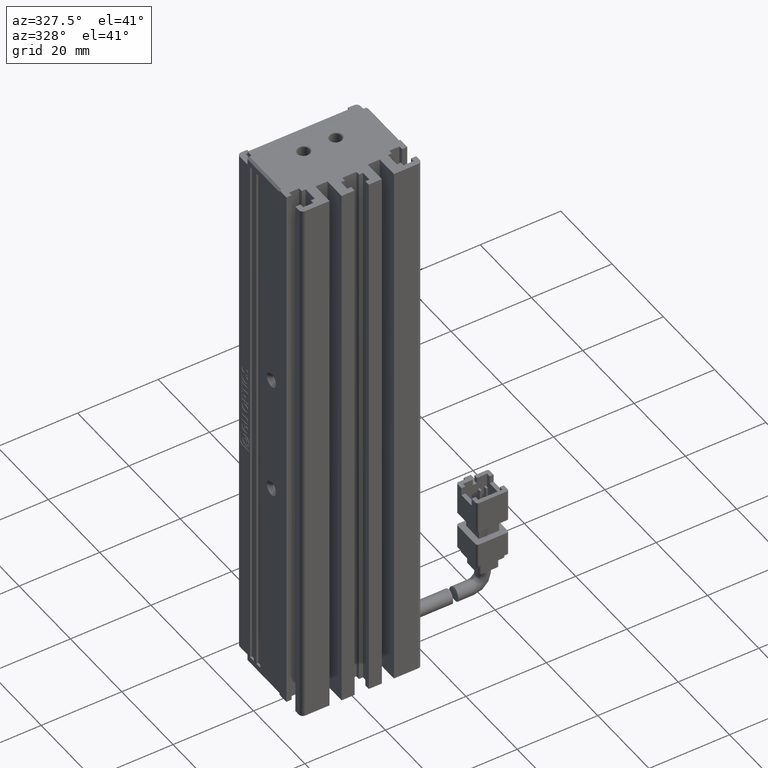
[diagram: clean part render]
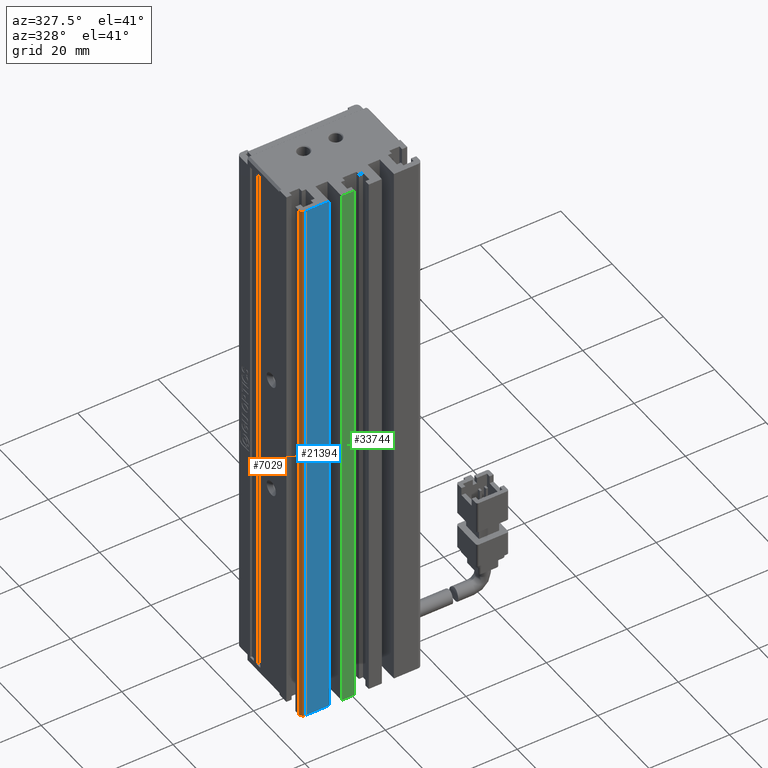
[diagram: same view with three faces highlighted in distinct colors, each labeled with its STEP entity id]
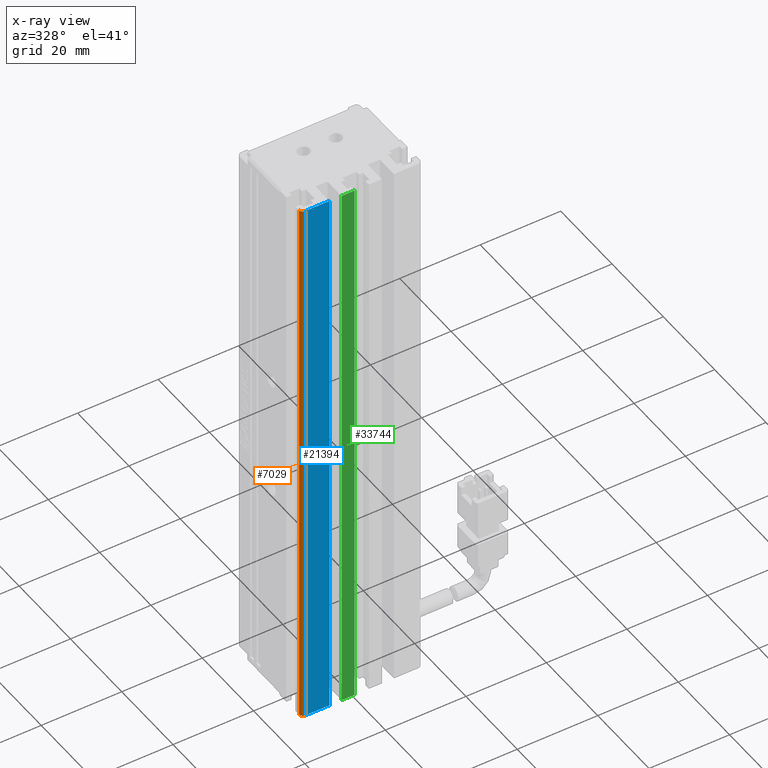
[diagram: x-ray of the same camera — body ghosted, the three highlighted faces saturated]
A machine part, auxiliary view with three faces highlighted in distinct colors.
The next image is the same camera in x-ray (body ghosted, the three faces saturated) — at least one of them is partly hidden behind the body in this view.
Their STEP definitions:

[orange] entity #7029 — the highlighted cylindrical surface (edge-blend (fillet) strip) has radius 1 mm, axis along (-0, -0, -1).
#10 = CARTESIAN_POINT ( 'NONE',  ( 26.92537974683542100, 10.69594479660386800, -45.00000000000000000 ) ) ;
#16 = EDGE_CURVE ( 'NONE', #2446, #2232, #22929, .T. ) ;
#410 = LINE ( 'NONE', #10, #8119 ) ;
#1608 = CARTESIAN_POINT ( 'NONE',  ( 25.92537974683542100, 11.69594479660387000, -45.00000000000000000 ) ) ;
#2232 = VERTEX_POINT ( 'NONE', #30188 ) ;
#2295 = DIRECTION ( 'NONE',  ( -1.000000000000000000, 0.0000000000000000000, 0.0000000000000000000 ) ) ;
#2411 = ORIENTED_EDGE ( 'NONE', *, *, #18554, .T. ) ;
#2446 = VERTEX_POINT ( 'NONE', #1608 ) ;
#3339 = CIRCLE ( 'NONE', #20445, 1.000000000000000900 ) ;
#3808 = ORIENTED_EDGE ( 'NONE', *, *, #36676, .T. ) ;
#7029 = ADVANCED_FACE ( 'NONE', ( #31079 ), #20768, .T. ) ;
#8106 = CIRCLE ( 'NONE', #25278, 1.000000000000000900 ) ;
#8119 = VECTOR ( 'NONE', #34425, 1000.000000000000000 ) ;
#10432 = DIRECTION ( 'NONE',  ( -1.000000000000000000, 0.0000000000000000000, 0.0000000000000000000 ) ) ;
#10530 = EDGE_CURVE ( 'NONE', #13809, #14666, #410, .T. ) ;
#10909 = CARTESIAN_POINT ( 'NONE',  ( 26.92537974683542100, 11.69594479660387000, -185.0000000000000000 ) ) ;
#13786 = DIRECTION ( 'NONE',  ( -1.000000000000000000, 0.0000000000000000000, 0.0000000000000000000 ) ) ;
#13809 = VERTEX_POINT ( 'NONE', #14790 ) ;
#14666 = VERTEX_POINT ( 'NONE', #24224 ) ;
#14790 = CARTESIAN_POINT ( 'NONE',  ( 26.92537974683542100, 10.69594479660386800, -45.00000000000000000 ) ) ;
#18554 = EDGE_CURVE ( 'NONE', #13809, #2446, #3339, .T. ) ;
#19461 = EDGE_LOOP ( 'NONE', ( #2411, #36730, #3808, #21695 ) ) ;
#19602 = DIRECTION ( 'NONE',  ( -0.0000000000000000000, -0.0000000000000000000, -1.000000000000000000 ) ) ;
#20445 = AXIS2_PLACEMENT_3D ( 'NONE', #36682, #19602, #2295 ) ;
#20768 = CYLINDRICAL_SURFACE ( 'NONE', #31567, 1.000000000000000900 ) ;
#21695 = ORIENTED_EDGE ( 'NONE', *, *, #10530, .F. ) ;
#22929 = LINE ( 'NONE', #29652, #37200 ) ;
#24224 = CARTESIAN_POINT ( 'NONE',  ( 26.92537974683542100, 10.69594479660386800, -185.0000000000000000 ) ) ;
#25278 = AXIS2_PLACEMENT_3D ( 'NONE', #10909, #30949, #13786 ) ;
#28973 = DIRECTION ( 'NONE',  ( -0.0000000000000000000, -0.0000000000000000000, -1.000000000000000000 ) ) ;
#29652 = CARTESIAN_POINT ( 'NONE',  ( 25.92537974683542100, 11.69594479660387000, -45.00000000000000000 ) ) ;
#30188 = CARTESIAN_POINT ( 'NONE',  ( 25.92537974683542100, 11.69594479660387000, -185.0000000000000000 ) ) ;
#30949 = DIRECTION ( 'NONE',  ( 0.0000000000000000000, 0.0000000000000000000, 1.000000000000000000 ) ) ;
#31079 = FACE_OUTER_BOUND ( 'NONE', #19461, .T. ) ;
#31567 = AXIS2_PLACEMENT_3D ( 'NONE', #36062, #33241, #10432 ) ;
#33241 = DIRECTION ( 'NONE',  ( -0.0000000000000000000, -0.0000000000000000000, -1.000000000000000000 ) ) ;
#34425 = DIRECTION ( 'NONE',  ( 0.0000000000000000000, -0.0000000000000000000, -1.000000000000000000 ) ) ;
#36062 = CARTESIAN_POINT ( 'NONE',  ( 26.92537974683542100, 11.69594479660387000, -45.00000000000000000 ) ) ;
#36676 = EDGE_CURVE ( 'NONE', #2232, #14666, #8106, .T. ) ;
#36682 = CARTESIAN_POINT ( 'NONE',  ( 26.92537974683542100, 11.69594479660387000, -45.00000000000000000 ) ) ;
#36730 = ORIENTED_EDGE ( 'NONE', *, *, #16, .T. ) ;
#37200 = VECTOR ( 'NONE', #28973, 1000.000000000000000 ) ;

[blue] entity #21394 — the highlighted planar face has unit normal (0, -1, 0).
#10 = CARTESIAN_POINT ( 'NONE',  ( 26.92537974683542100, 10.69594479660386800, -45.00000000000000000 ) ) ;
#410 = LINE ( 'NONE', #10, #8119 ) ;
#633 = CARTESIAN_POINT ( 'NONE',  ( 32.92537974683543200, 10.69594479660386800, -45.00000000000000000 ) ) ;
#1753 = DIRECTION ( 'NONE',  ( 1.000000000000000000, 0.0000000000000000000, 0.0000000000000000000 ) ) ;
#2870 = EDGE_CURVE ( 'NONE', #13809, #12828, #19930, .T. ) ;
#5850 = EDGE_CURVE ( 'NONE', #14666, #25915, #28060, .T. ) ;
#8119 = VECTOR ( 'NONE', #34425, 1000.000000000000000 ) ;
#8198 = DIRECTION ( 'NONE',  ( 0.0000000000000000000, -1.000000000000000000, 0.0000000000000000000 ) ) ;
#9019 = AXIS2_PLACEMENT_3D ( 'NONE', #25431, #8198, #28276 ) ;
#10530 = EDGE_CURVE ( 'NONE', #13809, #14666, #410, .T. ) ;
#12828 = VERTEX_POINT ( 'NONE', #633 ) ;
#13809 = VERTEX_POINT ( 'NONE', #14790 ) ;
#14199 = CARTESIAN_POINT ( 'NONE',  ( 32.92537974683543200, 10.69594479660386800, -185.0000000000000000 ) ) ;
#14293 = CARTESIAN_POINT ( 'NONE',  ( 40.92537974683542500, 10.69594479660386800, -45.00000000000000000 ) ) ;
#14666 = VERTEX_POINT ( 'NONE', #24224 ) ;
#14790 = CARTESIAN_POINT ( 'NONE',  ( 26.92537974683542100, 10.69594479660386800, -45.00000000000000000 ) ) ;
#19565 = PLANE ( 'NONE',  #9019 ) ;
#19930 = LINE ( 'NONE', #14293, #27534 ) ;
#21164 = EDGE_CURVE ( 'NONE', #25915, #12828, #32679, .T. ) ;
#21237 = ORIENTED_EDGE ( 'NONE', *, *, #2870, .F. ) ;
#21394 = ADVANCED_FACE ( 'NONE', ( #32688 ), #19565, .T. ) ;
#21958 = CARTESIAN_POINT ( 'NONE',  ( 40.92537974683542500, 10.69594479660386800, -185.0000000000000000 ) ) ;
#24057 = CARTESIAN_POINT ( 'NONE',  ( 32.92537974683543200, 10.69594479660386800, -45.00000000000000000 ) ) ;
#24224 = CARTESIAN_POINT ( 'NONE',  ( 26.92537974683542100, 10.69594479660386800, -185.0000000000000000 ) ) ;
#25431 = CARTESIAN_POINT ( 'NONE',  ( 40.92537974683542500, 10.69594479660386800, -45.00000000000000000 ) ) ;
#25915 = VERTEX_POINT ( 'NONE', #14199 ) ;
#26008 = ORIENTED_EDGE ( 'NONE', *, *, #21164, .T. ) ;
#26097 = EDGE_LOOP ( 'NONE', ( #21237, #34423, #32197, #26008 ) ) ;
#26959 = DIRECTION ( 'NONE',  ( 0.0000000000000000000, 0.0000000000000000000, 1.000000000000000000 ) ) ;
#27534 = VECTOR ( 'NONE', #31673, 1000.000000000000000 ) ;
#28060 = LINE ( 'NONE', #21958, #35612 ) ;
#28276 = DIRECTION ( 'NONE',  ( 0.0000000000000000000, -0.0000000000000000000, -1.000000000000000000 ) ) ;
#31673 = DIRECTION ( 'NONE',  ( 1.000000000000000000, 0.0000000000000000000, 0.0000000000000000000 ) ) ;
#31784 = VECTOR ( 'NONE', #26959, 1000.000000000000000 ) ;
#32197 = ORIENTED_EDGE ( 'NONE', *, *, #5850, .T. ) ;
#32679 = LINE ( 'NONE', #24057, #31784 ) ;
#32688 = FACE_OUTER_BOUND ( 'NONE', #26097, .T. ) ;
#34423 = ORIENTED_EDGE ( 'NONE', *, *, #10530, .T. ) ;
#34425 = DIRECTION ( 'NONE',  ( 0.0000000000000000000, -0.0000000000000000000, -1.000000000000000000 ) ) ;
#35612 = VECTOR ( 'NONE', #1753, 1000.000000000000000 ) ;

[green] entity #33744 — the highlighted planar face has unit normal (0, -1, 0).
#834 = DIRECTION ( 'NONE',  ( 1.000000000000000000, 0.0000000000000000000, 0.0000000000000000000 ) ) ;
#2557 = CARTESIAN_POINT ( 'NONE',  ( 40.92537974683542500, 10.69594479660386800, -45.00000000000000000 ) ) ;
#3215 = EDGE_CURVE ( 'NONE', #37224, #35789, #23011, .T. ) ;
#3944 = CARTESIAN_POINT ( 'NONE',  ( 35.92537974683543200, 10.69594479660386800, -45.00000000000000000 ) ) ;
#4085 = DIRECTION ( 'NONE',  ( 0.0000000000000000000, -0.0000000000000000000, -1.000000000000000000 ) ) ;
#4089 = ORIENTED_EDGE ( 'NONE', *, *, #17188, .T. ) ;
#4375 = ORIENTED_EDGE ( 'NONE', *, *, #23413, .F. ) ;
#5475 = DIRECTION ( 'NONE',  ( 0.0000000000000000000, -0.0000000000000000000, -1.000000000000000000 ) ) ;
#7686 = VECTOR ( 'NONE', #834, 1000.000000000000000 ) ;
#8574 = LINE ( 'NONE', #35214, #7686 ) ;
#10638 = LINE ( 'NONE', #11775, #18321 ) ;
#11474 = AXIS2_PLACEMENT_3D ( 'NONE', #2557, #22720, #5475 ) ;
#11775 = CARTESIAN_POINT ( 'NONE',  ( 40.92537974683542500, 10.69594479660386800, -185.0000000000000000 ) ) ;
#13355 = CARTESIAN_POINT ( 'NONE',  ( 39.17537974683542500, 10.69594479660386800, -185.0000000000000000 ) ) ;
#15824 = CARTESIAN_POINT ( 'NONE',  ( 39.17537974683542500, 10.69594479660386800, -45.00000000000000000 ) ) ;
#16035 = VERTEX_POINT ( 'NONE', #23262 ) ;
#17188 = EDGE_CURVE ( 'NONE', #16035, #18034, #23217, .T. ) ;
#17771 = CARTESIAN_POINT ( 'NONE',  ( 39.17537974683542500, 10.69594479660386800, -45.00000000000000000 ) ) ;
#18034 = VERTEX_POINT ( 'NONE', #25016 ) ;
#18321 = VECTOR ( 'NONE', #28918, 1000.000000000000000 ) ;
#22264 = ORIENTED_EDGE ( 'NONE', *, *, #3215, .T. ) ;
#22621 = PLANE ( 'NONE',  #11474 ) ;
#22720 = DIRECTION ( 'NONE',  ( 0.0000000000000000000, -1.000000000000000000, 0.0000000000000000000 ) ) ;
#22848 = ORIENTED_EDGE ( 'NONE', *, *, #27227, .T. ) ;
#23011 = LINE ( 'NONE', #15824, #37292 ) ;
#23217 = LINE ( 'NONE', #3944, #30825 ) ;
#23262 = CARTESIAN_POINT ( 'NONE',  ( 35.92537974683543200, 10.69594479660386800, -45.00000000000000000 ) ) ;
#23413 = EDGE_CURVE ( 'NONE', #16035, #35789, #8574, .T. ) ;
#24971 = FACE_OUTER_BOUND ( 'NONE', #25588, .T. ) ;
#25016 = CARTESIAN_POINT ( 'NONE',  ( 35.92537974683543200, 10.69594479660386800, -185.0000000000000000 ) ) ;
#25588 = EDGE_LOOP ( 'NONE', ( #4375, #4089, #22848, #22264 ) ) ;
#27227 = EDGE_CURVE ( 'NONE', #18034, #37224, #10638, .T. ) ;
#28918 = DIRECTION ( 'NONE',  ( 1.000000000000000000, 0.0000000000000000000, 0.0000000000000000000 ) ) ;
#30825 = VECTOR ( 'NONE', #4085, 1000.000000000000000 ) ;
#33744 = ADVANCED_FACE ( 'NONE', ( #24971 ), #22621, .T. ) ;
#35214 = CARTESIAN_POINT ( 'NONE',  ( 40.92537974683542500, 10.69594479660386800, -45.00000000000000000 ) ) ;
#35492 = DIRECTION ( 'NONE',  ( -0.0000000000000000000, 0.0000000000000000000, 1.000000000000000000 ) ) ;
#35789 = VERTEX_POINT ( 'NONE', #17771 ) ;
#37224 = VERTEX_POINT ( 'NONE', #13355 ) ;
#37292 = VECTOR ( 'NONE', #35492, 1000.000000000000000 ) ;